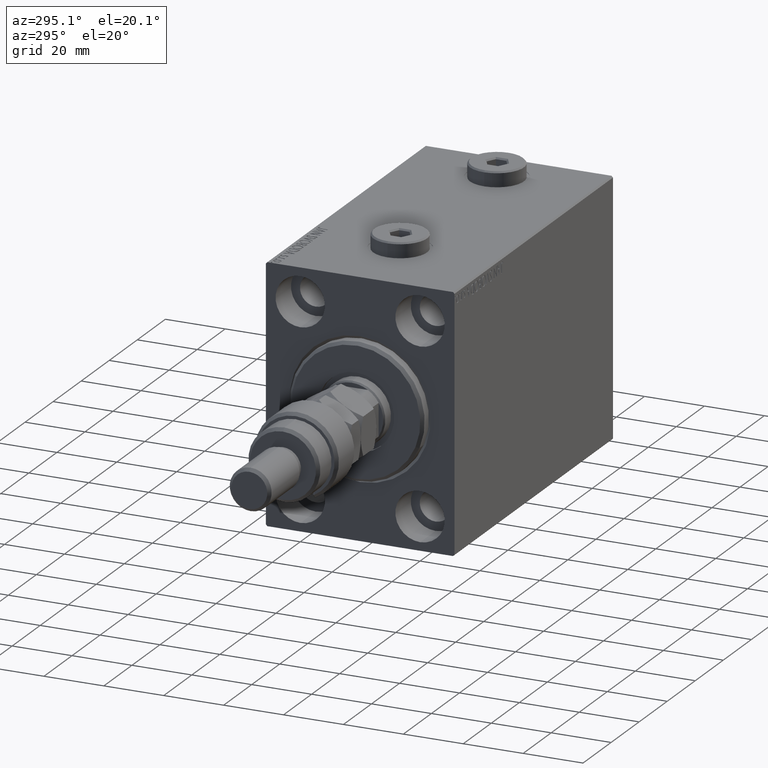
[diagram: clean part render]
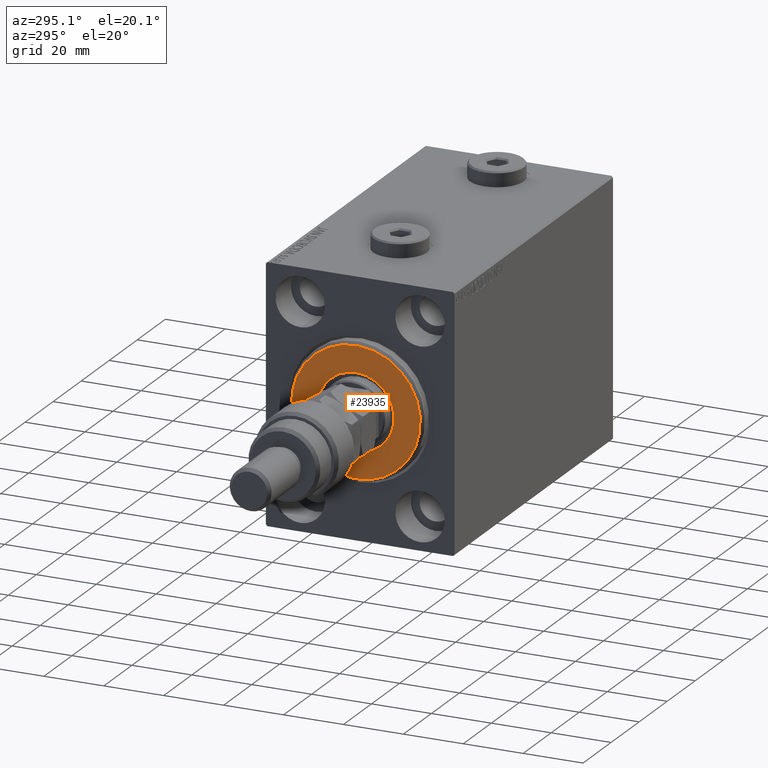
[diagram: same view with one face highlighted and labeled with its STEP entity id]
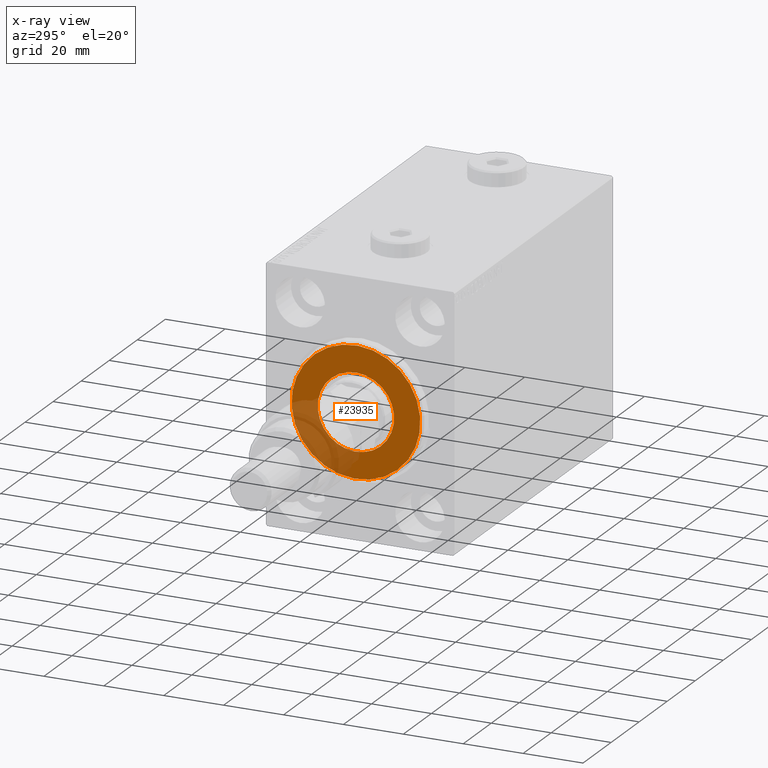
[diagram: x-ray of the same camera — body ghosted, the highlighted face saturated]
A machine part, auxiliary view. The second image highlights one B-rep face of the part: STEP entity #23935.
The next image is the same camera in x-ray: the body ghosted, the highlighted face saturated — about 25% of this face is hidden behind the body in this view.
In plain terms, the highlighted planar face has unit normal (-1, 0, 0).
Its self-contained STEP definition (entity closure, byte-faithful):
#561 = EDGE_CURVE ( 'NONE', #3712, #35457, #5579, .T. ) ;
#3428 = CARTESIAN_POINT ( 'NONE',  ( 3.000000000000000000, 1.561424668912874914E-15, -12.75000000000000000 ) ) ;
#3499 = DIRECTION ( 'NONE',  ( -1.000000000000000000, 0.000000000000000000, -0.000000000000000000 ) ) ;
#3595 = DIRECTION ( 'NONE',  ( 0.000000000000000000, 0.000000000000000000, -1.000000000000000000 ) ) ;
#3712 = VERTEX_POINT ( 'NONE', #8292 ) ;
#3896 = EDGE_LOOP ( 'NONE', ( #23794, #6363 ) ) ;
#4566 = CARTESIAN_POINT ( 'NONE',  ( 3.000000000000000000, 0.000000000000000000, 0.000000000000000000 ) ) ;
#5579 = CIRCLE ( 'NONE', #35805, 12.75000000000000000 ) ;
#6363 = ORIENTED_EDGE ( 'NONE', *, *, #42659, .T. ) ;
#7145 = CARTESIAN_POINT ( 'NONE',  ( 3.000000000000000000, 0.000000000000000000, 0.000000000000000000 ) ) ;
#7183 = CARTESIAN_POINT ( 'NONE',  ( 3.000000000000000000, 0.000000000000000000, 0.000000000000000000 ) ) ;
#7471 = PLANE ( 'NONE',  #25325 ) ;
#7710 = CARTESIAN_POINT ( 'NONE',  ( 3.000000000000000000, 0.000000000000000000, 0.000000000000000000 ) ) ;
#8292 = CARTESIAN_POINT ( 'NONE',  ( 3.000000000000000000, 0.000000000000000000, 12.75000000000000000 ) ) ;
#10635 = FACE_BOUND ( 'NONE', #3896, .T. ) ;
#13921 = AXIS2_PLACEMENT_3D ( 'NONE', #7145, #3499, #30449 ) ;
#14275 = CARTESIAN_POINT ( 'NONE',  ( 3.000000000000000000, 0.000000000000000000, 0.000000000000000000 ) ) ;
#14755 = DIRECTION ( 'NONE',  ( 1.000000000000000000, -0.000000000000000000, 0.000000000000000000 ) ) ;
#15198 = ORIENTED_EDGE ( 'NONE', *, *, #25318, .T. ) ;
#15282 = CARTESIAN_POINT ( 'NONE',  ( 3.000000000000000000, 0.000000000000000000, 21.50000000000000355 ) ) ;
#15779 = ORIENTED_EDGE ( 'NONE', *, *, #27311, .T. ) ;
#20203 = VERTEX_POINT ( 'NONE', #15282 ) ;
#21258 = DIRECTION ( 'NONE',  ( 1.000000000000000000, -0.000000000000000000, 0.000000000000000000 ) ) ;
#22020 = DIRECTION ( 'NONE',  ( 0.000000000000000000, 0.000000000000000000, -1.000000000000000000 ) ) ;
#22092 = CARTESIAN_POINT ( 'NONE',  ( 3.000000000000000000, 2.694222958124177598E-15, -21.50000000000000355 ) ) ;
#23794 = ORIENTED_EDGE ( 'NONE', *, *, #561, .T. ) ;
#23935 = ADVANCED_FACE ( 'NONE', ( #25450, #10635 ), #7471, .T. ) ;
#25318 = EDGE_CURVE ( 'NONE', #25965, #20203, #42315, .T. ) ;
#25325 = AXIS2_PLACEMENT_3D ( 'NONE', #14275, #14755, #22020 ) ;
#25450 = FACE_OUTER_BOUND ( 'NONE', #39564, .T. ) ;
#25965 = VERTEX_POINT ( 'NONE', #22092 ) ;
#27311 = EDGE_CURVE ( 'NONE', #20203, #25965, #42393, .T. ) ;
#29915 = AXIS2_PLACEMENT_3D ( 'NONE', #7183, #21258, #36800 ) ;
#30449 = DIRECTION ( 'NONE',  ( 0.000000000000000000, 0.000000000000000000, -1.000000000000000000 ) ) ;
#35457 = VERTEX_POINT ( 'NONE', #3428 ) ;
#35805 = AXIS2_PLACEMENT_3D ( 'NONE', #4566, #36875, #44641 ) ;
#36800 = DIRECTION ( 'NONE',  ( 0.000000000000000000, 0.000000000000000000, -1.000000000000000000 ) ) ;
#36875 = DIRECTION ( 'NONE',  ( -1.000000000000000000, 0.000000000000000000, -0.000000000000000000 ) ) ;
#39564 = EDGE_LOOP ( 'NONE', ( #15779, #15198 ) ) ;
#41463 = DIRECTION ( 'NONE',  ( 1.000000000000000000, -0.000000000000000000, 0.000000000000000000 ) ) ;
#41855 = CIRCLE ( 'NONE', #13921, 12.75000000000000000 ) ;
#42315 = CIRCLE ( 'NONE', #29915, 21.50000000000000355 ) ;
#42393 = CIRCLE ( 'NONE', #47829, 21.50000000000000355 ) ;
#42659 = EDGE_CURVE ( 'NONE', #35457, #3712, #41855, .T. ) ;
#44641 = DIRECTION ( 'NONE',  ( 0.000000000000000000, 0.000000000000000000, -1.000000000000000000 ) ) ;
#47829 = AXIS2_PLACEMENT_3D ( 'NONE', #7710, #41463, #3595 ) ;